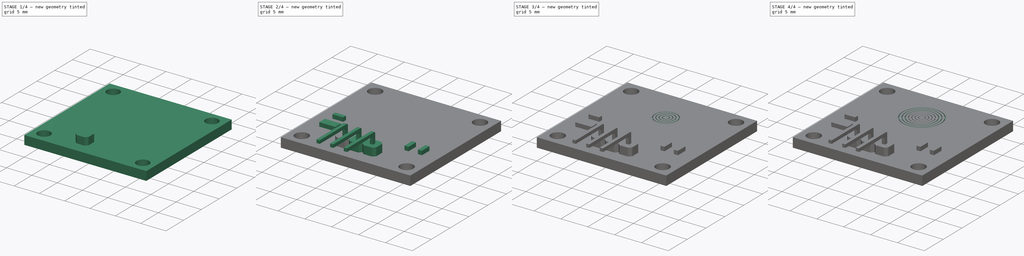
[diagram: build sequence overview — one tinted view per stage of 4, left to right]
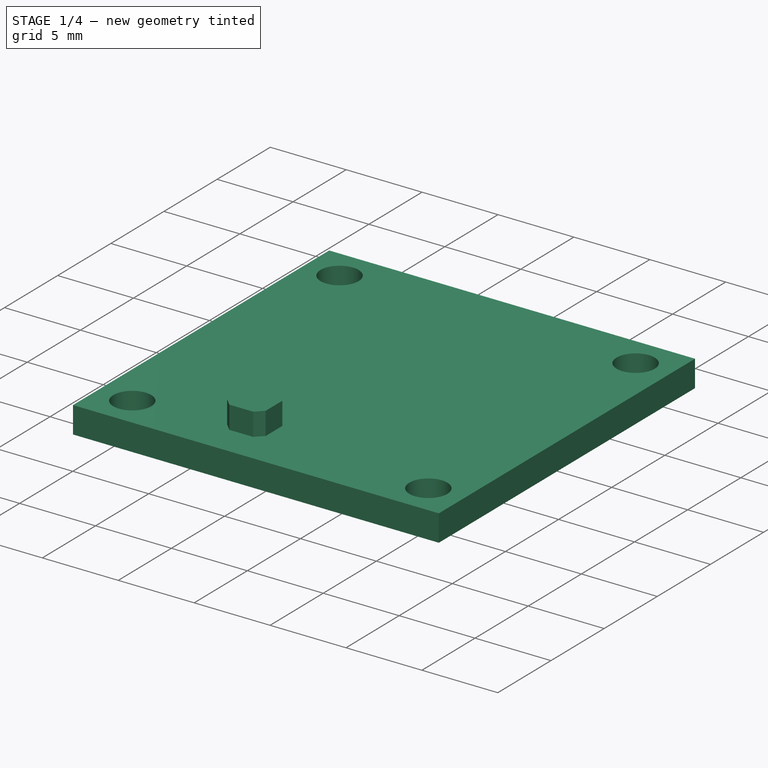
[diagram: stage 1 of 4 — iso view after this stage's code; geometry added in this stage tinted green]
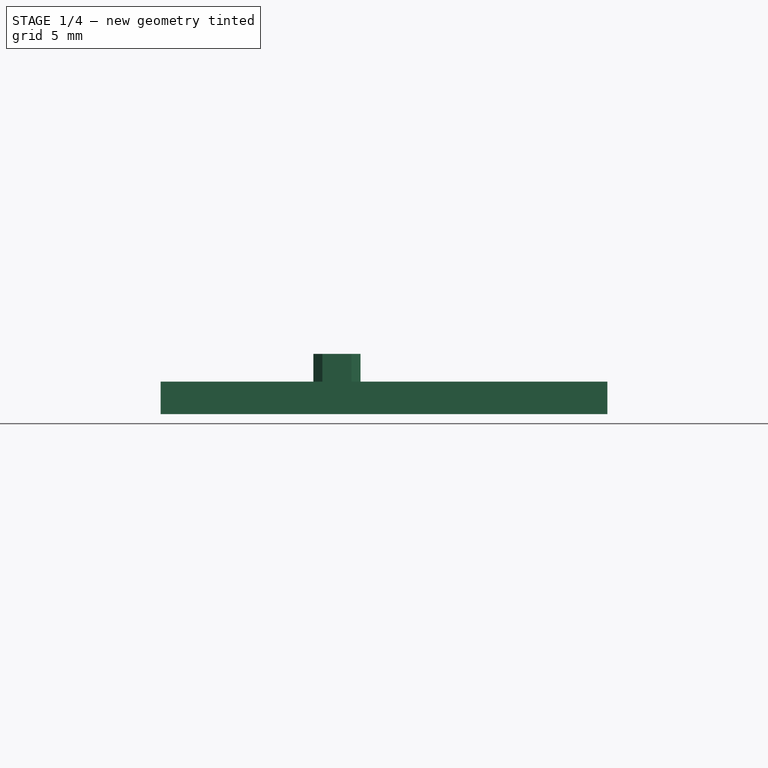
[diagram: stage 1 of 4 — front view after this stage's code; geometry added in this stage tinted green]
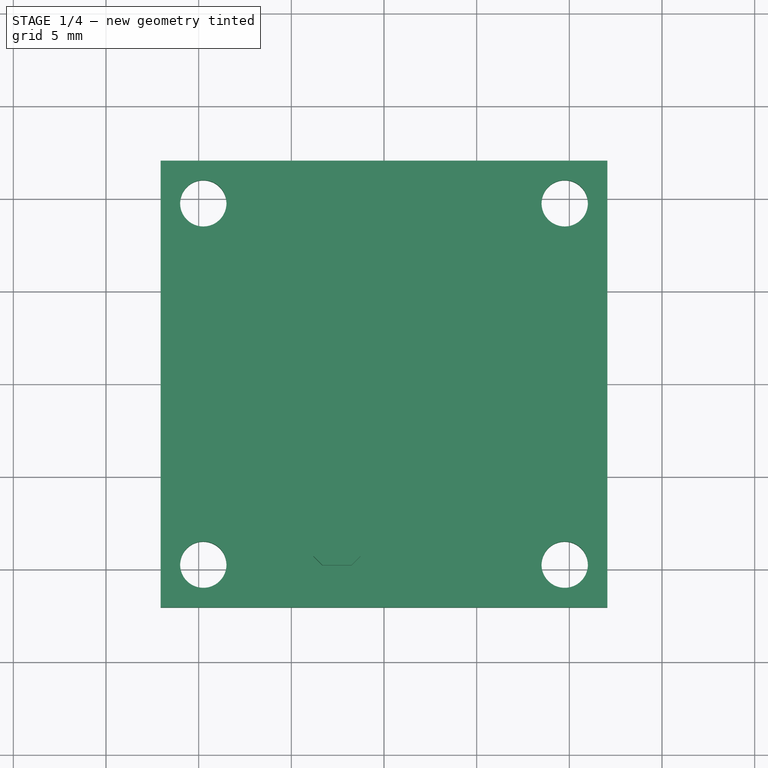
[diagram: stage 1 of 4 — top view after this stage's code; geometry added in this stage tinted green]
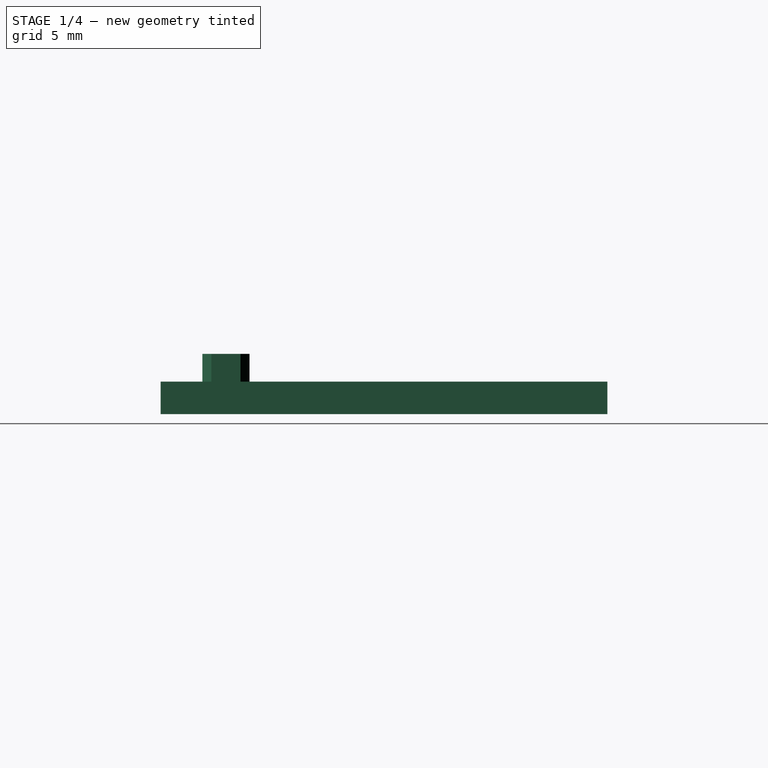
[diagram: stage 1 of 4 — right view after this stage's code; geometry added in this stage tinted green]
FCSTD DOCUMENT  (FreeCAD 1.0R39109 (Git))
Label: touch_sensor
License: All rights reserved
LicenseURL: http://en.wikipedia.org/wiki/All_rights_reserved
objects: Sketcher::SketchObject×14, PartDesign::Pocket×8, PartDesign::Pad×4, PartDesign::Plane×1, PartDesign::LinearPattern×1, PartDesign::Body×1
note: 68 computed .brp shape members not serialized (recipe doc carries the construction recipe); baked Part::Feature solids carry a one-line shape summary decoded from their .brp

FEATURE [Sketcher::SketchObject] Sketch
  ArcFitTolerance = 1e-06
  AttachmentSupport = -> [XY_Plane]
  FullyConstrained = true
  MakeInternals = false
  MapMode = 5
  sketch-geometry (5):
    g0: LineSegment StartX=-12.05 StartY=12.05 StartZ=0 EndX=-12.05 EndY=-12.05 EndZ=0
    g1: LineSegment StartX=-12.05 StartY=-12.05 StartZ=0 EndX=12.05 EndY=-12.05 EndZ=0
    g2: LineSegment StartX=12.05 StartY=-12.05 StartZ=0 EndX=12.05 EndY=12.05 EndZ=0
    g3: LineSegment StartX=12.05 StartY=12.05 StartZ=0 EndX=-12.05 EndY=12.05 EndZ=0
    g4: GeomPoint [constr] X=0 Y=0 Z=0
  constraints (12):
    c: Coincident(g0,g1)
    c: Coincident(g1,g2)
    c: Coincident(g2,g3)
    c: Coincident(g3,g0)
    c: Vertical(g0)
    c: Vertical(g2)
    c: Horizontal(g1)
    c: Horizontal(g3)
    c: Symmetric(g2,g0,g4)
    c: Coincident(g4,g-1)
    c: DistanceX(g3,g3) = 24.1
    c: Equal(g2,g3)
FEATURE [PartDesign::Pad] Pad  label="PCBPad"
  Direction = (0,0,1)
  Length = 1.75
  Length2 = 10
  Profile = -> Sketch
  ReferenceAxis = -> Sketch [N_Axis]
  Refine = true
  Suppressed = false
  Type = 0
FEATURE [Sketcher::SketchObject] Sketch001
  ArcFitTolerance = 1e-06
  AttachmentSupport = -> [Pad]
  FullyConstrained = true
  MakeInternals = false
  MapMode = 5
  Placement = pos=(0,0,1.75) rot=(0,0,1;0rad)
  sketch-geometry (6):
    g0: Circle CenterX=-9.75 CenterY=9.75 CenterZ=0 NormalX=0 NormalY=0 NormalZ=1 AngleXU=0 Radius=1.25
    g1: Circle CenterX=9.75 CenterY=9.75 CenterZ=0 NormalX=0 NormalY=0 NormalZ=1 AngleXU=0 Radius=1.25
    g2: Circle CenterX=-9.75 CenterY=-9.75 CenterZ=0 NormalX=0 NormalY=0 NormalZ=1 AngleXU=0 Radius=1.25
    g3: Circle CenterX=9.75 CenterY=-9.75 CenterZ=0 NormalX=0 NormalY=0 NormalZ=1 AngleXU=0 Radius=1.25
    g4: GeomPoint X=8.5 Y=9.75 Z=0
    g5: GeomPoint X=-8.5 Y=9.75 Z=0
  constraints (13):
    c: Symmetric(g2,g0,g-1)
    c: Symmetric(g1,g3,g-1)
    c: Symmetric(g3,g2,g-2)
    c: Equal(g3,g2)
    c: Equal(g2,g0)
    c: Equal(g0,g1)
    c: Radius(g0) = 1.25
    c: PointOnObject(g4,g1)
    c: PointOnObject(g5,g0)
    c: Horizontal(g5,g4)
    c: Horizontal(g1,g4)
    c: DistanceX(g5,g4) = 17
    c: DistanceY(g3,g1) = 19.5
FEATURE [PartDesign::Pocket] Pocket  label="ScrewPocket"
  BaseFeature = -> Pad
  Direction = (0,0,-1)
  Length = 4
  Length2 = 5
  Profile = -> Sketch001
  ReferenceAxis = -> Sketch001 [N_Axis]
  Refine = true
  Suppressed = false
  Type = 1
FEATURE [Sketcher::SketchObject] Sketch002
  ArcFitTolerance = 1e-06
  AttachmentSupport = -> [Pocket]
  ExternalGeometry = -> [Pocket]
  FullyConstrained = true
  MakeInternals = false
  MapMode = 5
  Placement = pos=(0,0,1.75) rot=(0,0,1;0rad)
  sketch-geometry (18):
    g0: LineSegment [constr] StartX=-3.81 StartY=-7.26 StartZ=0 EndX=-3.81 EndY=-9.8 EndZ=0
    g1: LineSegment [constr] StartX=-3.81 StartY=-9.8 StartZ=0 EndX=-1.27 EndY=-9.8 EndZ=0
    g2: LineSegment [constr] StartX=-1.27 StartY=-9.8 StartZ=0 EndX=-1.27 EndY=-7.26 EndZ=0
    g3: LineSegment [constr] StartX=-1.27 StartY=-7.26 StartZ=0 EndX=-3.81 EndY=-7.26 EndZ=0
    g4: GeomPoint [constr] X=-2.54 Y=-8.53 Z=0
    g5: LineSegment [constr] StartX=-1.27 StartY=-7.26 StartZ=0 EndX=-1.27 EndY=-9.8 EndZ=0
    g6: LineSegment [constr] StartX=-1.27 StartY=-9.8 StartZ=0 EndX=1.27 EndY=-9.8 EndZ=0
    g7: LineSegment [constr] StartX=1.27 StartY=-9.8 StartZ=0 EndX=1.27 EndY=-7.26 EndZ=0
    g8: LineSegment [constr] StartX=1.27 StartY=-7.26 StartZ=0 EndX=-1.27 EndY=-7.26 EndZ=0
    g9: GeomPoint [constr] X=0 Y=-8.53 Z=0
    g10: LineSegment StartX=-3.81 StartY=-7.74412 StartZ=0 EndX=-3.81 EndY=-9.31588 EndZ=0
    g11: LineSegment StartX=-3.81 StartY=-9.31588 StartZ=0 EndX=-3.32588 EndY=-9.8 EndZ=0
    g12: LineSegment StartX=-3.32588 StartY=-9.8 StartZ=0 EndX=-1.75412 EndY=-9.8 EndZ=0
    g13: LineSegment StartX=-1.75412 StartY=-9.8 StartZ=0 EndX=-1.27 EndY=-9.31588 EndZ=0
    g14: LineSegment StartX=-1.27 StartY=-9.31588 StartZ=0 EndX=-1.27 EndY=-7.74412 EndZ=0
    g15: LineSegment StartX=-1.27 StartY=-7.74412 StartZ=0 EndX=-1.75412 EndY=-7.26 EndZ=0
    g16: LineSegment StartX=-1.75412 StartY=-7.26 StartZ=0 EndX=-3.32588 EndY=-7.26 EndZ=0
    g17: LineSegment StartX=-3.32588 StartY=-7.26 StartZ=0 EndX=-3.81 EndY=-7.74412 EndZ=0
  constraints (48):
    c: Coincident(g0,g1)
    c: Coincident(g1,g2)
    c: Coincident(g2,g3)
    c: Coincident(g3,g0)
    c: Vertical(g0)
    c: Vertical(g2)
    c: Horizontal(g1)
    c: Horizontal(g3)
    c: Symmetric(g2,g0,g4)
    c: Coincident(g5,g6)
    c: Coincident(g6,g7)
    c: Coincident(g7,g8)
    c: Coincident(g8,g5)
    c: Vertical(g7)
    c: Horizontal(g6)
    c: Horizontal(g8)
    c: Symmetric(g7,g5,g9)
    c: PointOnObject(g9,g-2)
    c: Coincident(g5,g2)
    c: Coincident(g5,g1)
    c: Equal(g3,g8)
    c: DistanceX(g3,g3) = 2.54
    c: Equal(g2,g3)
    c: DistanceY(g-3,g6) = 2.25
    c: PointOnObject(g10,g0)
    c: PointOnObject(g10,g0)
    c: Coincident(g10,g11)
    c: PointOnObject(g11,g1)
    c: Coincident(g11,g12)
    c: PointOnObject(g12,g1)
    c: Coincident(g12,g13)
    c: PointOnObject(g13,g2)
    c: Coincident(g13,g14)
    c: PointOnObject(g14,g2)
    c: Coincident(g14,g15)
    c: PointOnObject(g15,g3)
    c: Coincident(g15,g16)
    c: PointOnObject(g16,g3)
    c: Coincident(g16,g17)
    c: Coincident(g17,g10)
    c: Equal(g17,g15)
    c: Equal(g15,g13)
    c: Equal(g13,g11)
    c: Parallel(g17,g13)
    c: Parallel(g11,g15)
    c: Angle(g13,g12) = 2.35619
    c: Equal(g14,g16)
    c: Equal(g16,g10)
FEATURE [PartDesign::Pad] Pad001  label="ConnBasePad"
  BaseFeature = -> Pocket
  Direction = (0,0,1)
  Length = 1.5
  Length2 = 10
  Profile = -> Sketch002
  ReferenceAxis = -> Sketch002 [N_Axis]
  Refine = true
  Suppressed = false
  Type = 0
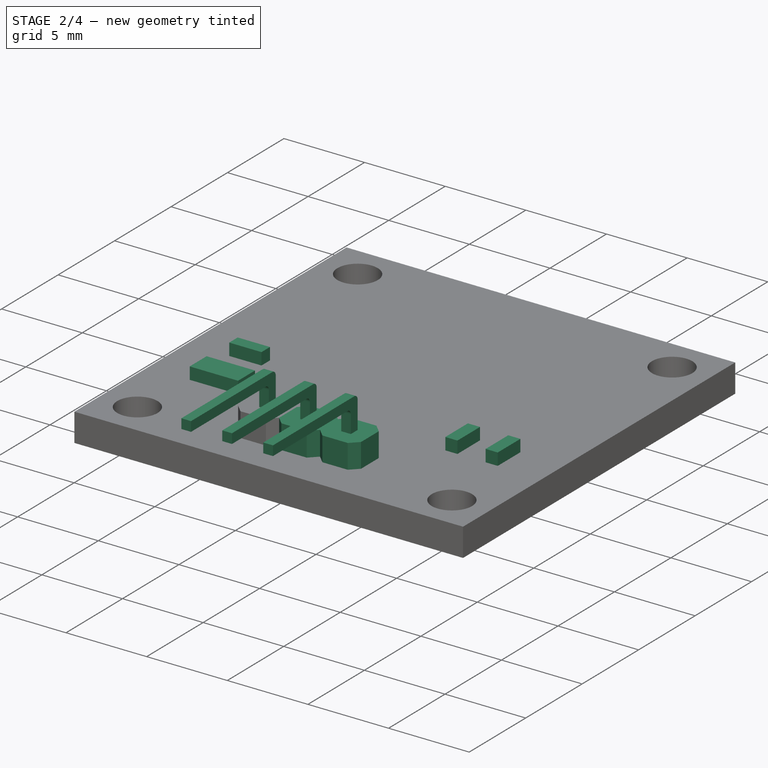
[diagram: stage 2 of 4 — iso view after this stage's code; geometry added in this stage tinted green]
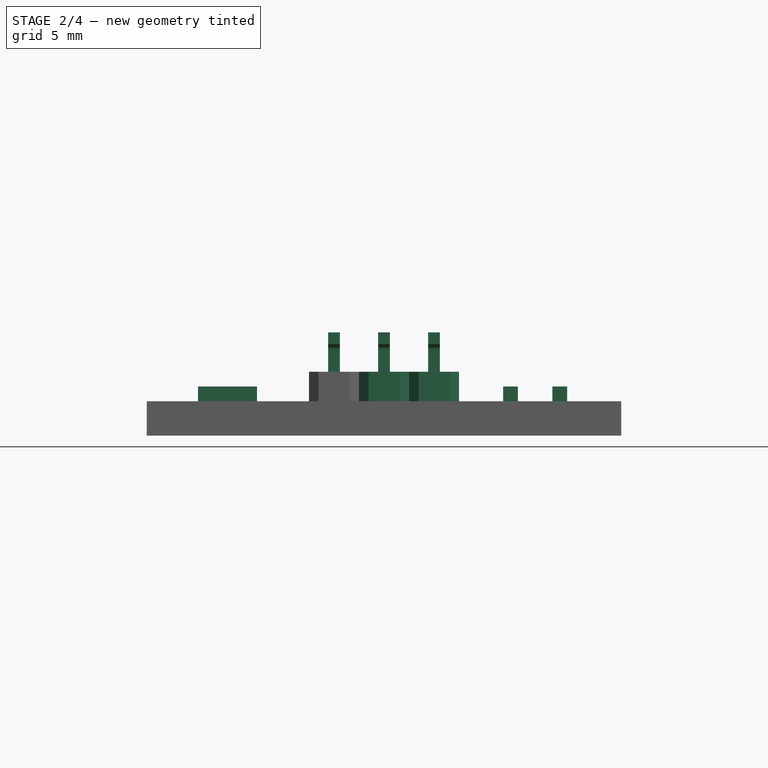
[diagram: stage 2 of 4 — front view after this stage's code; geometry added in this stage tinted green]
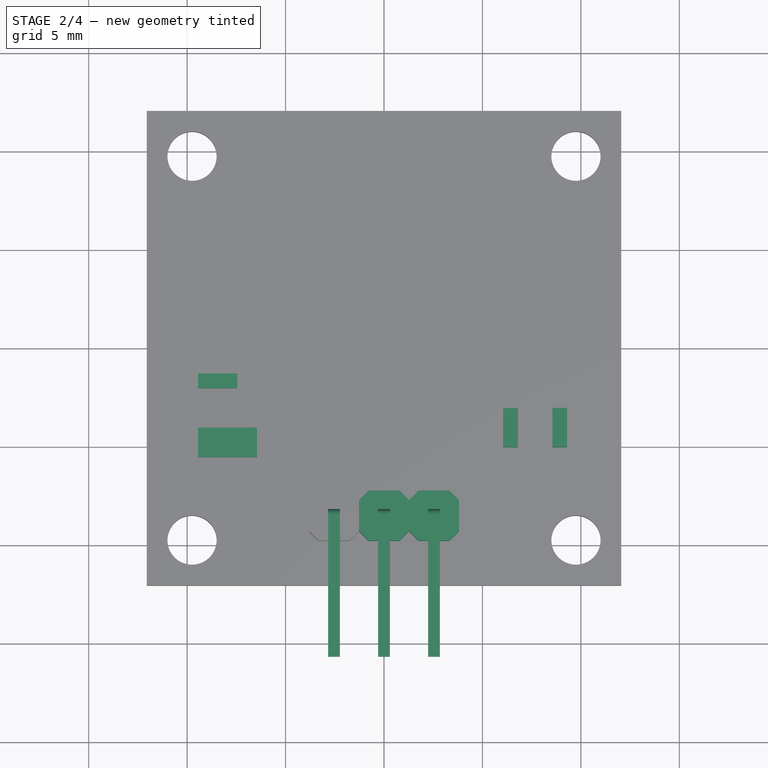
[diagram: stage 2 of 4 — top view after this stage's code; geometry added in this stage tinted green]
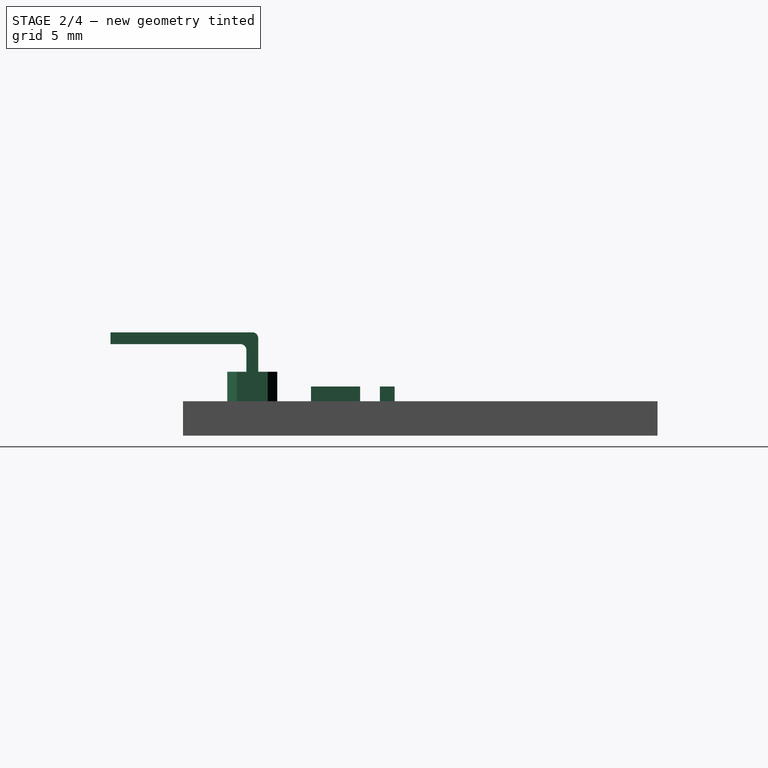
[diagram: stage 2 of 4 — right view after this stage's code; geometry added in this stage tinted green]
FEATURE [Sketcher::SketchObject] Sketch003
  ArcFitTolerance = 1e-06
  AttachmentSupport = -> [Pad001]
  ExternalGeometry = -> [Pad001]
  FullyConstrained = true
  MakeInternals = false
  MapMode = 5
  Placement = pos=(0,0,3.25) rot=(0,0,1;0rad)
  sketch-geometry (1):
    g0: GeomPoint X=-2.54 Y=-7.26 Z=0
  constraints (1):
    c: Symmetric(g-3,g-3,g0)
FEATURE [PartDesign::Plane] DatumPlane  label="ConnReference"
  AttachmentSupport = -> [YZ_Plane,Sketch003]
  Length = 60
  MapMode = 53
  Placement = pos=(-2.54,3e-16,-3e-16) rot=(0.57735,0.57735,0.57735;2.0944rad)
  ResizeMode = 0
  Width = 60
FEATURE [Sketcher::SketchObject] Sketch004
  ArcFitTolerance = 1e-06
  AttachmentSupport = -> [DatumPlane]
  ExternalGeometry = -> [Pad001]
  FullyConstrained = true
  MakeInternals = false
  MapMode = 5
  Placement = pos=(-2.54,3e-16,-3e-16) rot=(0.57735,0.57735,0.57735;2.0944rad)
  sketch-geometry (9):
    g0: GeomPoint X=-8.53 Y=3.25 Z=0
    g1: LineSegment StartX=-8.83 StartY=3.25 StartZ=0 EndX=-8.23 EndY=3.25 EndZ=0
    g2: LineSegment StartX=-8.23 StartY=3.25 StartZ=0 EndX=-8.23 EndY=4.95 EndZ=0
    g3: ArcOfCircle CenterX=-8.53 CenterY=4.95 CenterZ=0 NormalX=0 NormalY=0 NormalZ=1 AngleXU=0 Radius=0.3 StartAngle=0 EndAngle=1.5708
    g4: LineSegment StartX=-8.53 StartY=5.25 StartZ=0 EndX=-15.73 EndY=5.25 EndZ=0
    g5: LineSegment StartX=-15.73 StartY=5.25 StartZ=0 EndX=-15.73 EndY=4.65 EndZ=0
    g6: LineSegment StartX=-15.73 StartY=4.65 StartZ=0 EndX=-9.13 EndY=4.65 EndZ=0
    g7: ArcOfCircle CenterX=-9.13 CenterY=4.35 CenterZ=0 NormalX=0 NormalY=0 NormalZ=1 AngleXU=0 Radius=0.3 StartAngle=9e-16 EndAngle=1.5708
    g8: LineSegment StartX=-8.83 StartY=4.35 StartZ=0 EndX=-8.83 EndY=3.25 EndZ=0
  constraints (22):
    c: Symmetric(g-3,g-3,g0)
    c: PointOnObject(g1,g-3)
    c: Coincident(g1,g2)
    c: Vertical(g2)
    c: Tangent(g2,g3) = -1.5708
    c: Coincident(g4,g5)
    c: Vertical(g5)
    c: Coincident(g5,g6)
    c: Horizontal(g6)
    c: Tangent(g6,g7) = 1.5708
    c: Coincident(g8,g1)
    c: Tangent(g7,g8) = 1.5708
    c: Vertical(g8)
    c: Horizontal(g4)
    c: Tangent(g3,g4) = -1.5708
    c: DistanceX(g1,g1) = 0.6
    c: DistanceY(g1,g3) = 2
    c: DistanceY(g5,g5) = 0.6
    c: DistanceX(g4,g2) = 7.5
    c: Symmetric(g1,g1,g0)
    c: Equal(g7,g3)
    c: Radius(g7) = 0.3
FEATURE [PartDesign::Pad] Pad002  label="ConnPad"
  BaseFeature = -> Pad001
  Direction = (1,0,0)
  Length = 0.3
  Length2 = 0.3
  Profile = -> Sketch004
  ReferenceAxis = -> Sketch004 [N_Axis]
  Refine = true
  Suppressed = false
  Type = 4
FEATURE [PartDesign::LinearPattern] LinearPattern  label="ConnPattern"
  BaseFeature = -> Pad002
  Direction = -> X_Axis
  Length = 5.08
  Mode = 1
  Occurrences = 3
  Offset = 2.54
  Originals = -> [Pad002,Pad001]
  Refine = true
  Suppressed = false
  TransformMode = 0
FEATURE [Sketcher::SketchObject] Sketch005
  ArcFitTolerance = 1e-06
  AttachmentSupport = -> [LinearPattern]
  ExternalGeometry = -> [LinearPattern]
  FullyConstrained = true
  MakeInternals = false
  MapMode = 5
  Placement = pos=(0,0,1.75) rot=(0,0,1;0rad)
  sketch-geometry (16):
    g0: LineSegment StartX=8.55 StartY=-3.05 StartZ=0 EndX=8.55 EndY=-5.05 EndZ=0
    g1: LineSegment StartX=8.55 StartY=-5.05 StartZ=0 EndX=9.3 EndY=-5.05 EndZ=0
    g2: LineSegment StartX=9.3 StartY=-5.05 StartZ=0 EndX=9.3 EndY=-3.05 EndZ=0
    g3: LineSegment StartX=9.3 StartY=-3.05 StartZ=0 EndX=8.55 EndY=-3.05 EndZ=0
    g4: LineSegment StartX=6.05 StartY=-3.05 StartZ=0 EndX=6.05 EndY=-5.05 EndZ=0
    g5: LineSegment StartX=6.05 StartY=-5.05 StartZ=0 EndX=6.8 EndY=-5.05 EndZ=0
    g6: LineSegment StartX=6.8 StartY=-5.05 StartZ=0 EndX=6.8 EndY=-3.05 EndZ=0
    g7: LineSegment StartX=6.8 StartY=-3.05 StartZ=0 EndX=6.05 EndY=-3.05 EndZ=0
    g8: LineSegment StartX=-9.45 StartY=-4.05 StartZ=0 EndX=-9.45 EndY=-5.55 EndZ=0
    g9: LineSegment StartX=-9.45 StartY=-5.55 StartZ=0 EndX=-6.45 EndY=-5.55 EndZ=0
    g10: LineSegment StartX=-6.45 StartY=-5.55 StartZ=0 EndX=-6.45 EndY=-4.05 EndZ=0
    g11: LineSegment StartX=-6.45 StartY=-4.05 StartZ=0 EndX=-9.45 EndY=-4.05 EndZ=0
    g12: LineSegment StartX=-9.45 StartY=-1.3 StartZ=0 EndX=-9.45 EndY=-2.05 EndZ=0
    g13: LineSegment StartX=-9.45 StartY=-2.05 StartZ=0 EndX=-7.45 EndY=-2.05 EndZ=0
    g14: LineSegment StartX=-7.45 StartY=-2.05 StartZ=0 EndX=-7.45 EndY=-1.3 EndZ=0
    g15: LineSegment StartX=-7.45 StartY=-1.3 StartZ=0 EndX=-9.45 EndY=-1.3 EndZ=0
  constraints (48):
    c: Coincident(g0,g1)
    c: Coincident(g1,g2)
    c: Coincident(g2,g3)
    c: Coincident(g3,g0)
    c: Vertical(g0)
    c: Vertical(g2)
    c: Horizontal(g1)
    c: Horizontal(g3)
    c: Coincident(g4,g5)
    c: Coincident(g5,g6)
    c: Coincident(g6,g7)
    c: Coincident(g7,g4)
    c: Vertical(g4)
    c: Vertical(g6)
    c: Horizontal(g5)
    c: Horizontal(g7)
    c: Coincident(g8,g9)
    c: Coincident(g9,g10)
    c: Coincident(g10,g11)
    c: Coincident(g11,g8)
    c: Vertical(g8)
    c: Vertical(g10)
    c: Horizontal(g9)
    c: Horizontal(g11)
    c: Coincident(g12,g13)
    c: Coincident(g13,g14)
    c: Coincident(g14,g15)
    c: Coincident(g15,g12)
    c: Vertical(g12)
    c: Vertical(g14)
    c: Horizontal(g13)
    c: Horizontal(g15)
    c: DistanceY(g2,g2) = 2
    c: DistanceX(g3,g3) = 0.75
    c: Equal(g7,g3)
    c: Equal(g3,g14)
    c: Equal(g15,g4)
    c: Equal(g4,g2)
    c: Horizontal(g0,g6)
    c: DistanceY(g4,g13) = 1
    c: DistanceX(g9,g9) = 3
    c: DistanceY(g10,g10) = 1.5
    c: Vertical(g8,g12)
    c: DistanceY(g8,g12) = 2
    c: DistanceX(g5,g0) = 1.75
    c: DistanceX(g1,g-3) = 2.75
    c: DistanceY(g-3,g4) = 7
    c: DistanceX(g14,g4) = 13.5
FEATURE [PartDesign::Pad] Pad003  label="ElectronicsPad"
  BaseFeature = -> LinearPattern
  Direction = (0,0,1)
  Length = 0.75
  Length2 = 10
  Profile = -> Sketch005
  ReferenceAxis = -> Sketch005 [N_Axis]
  Refine = true
  Suppressed = false
  Type = 0
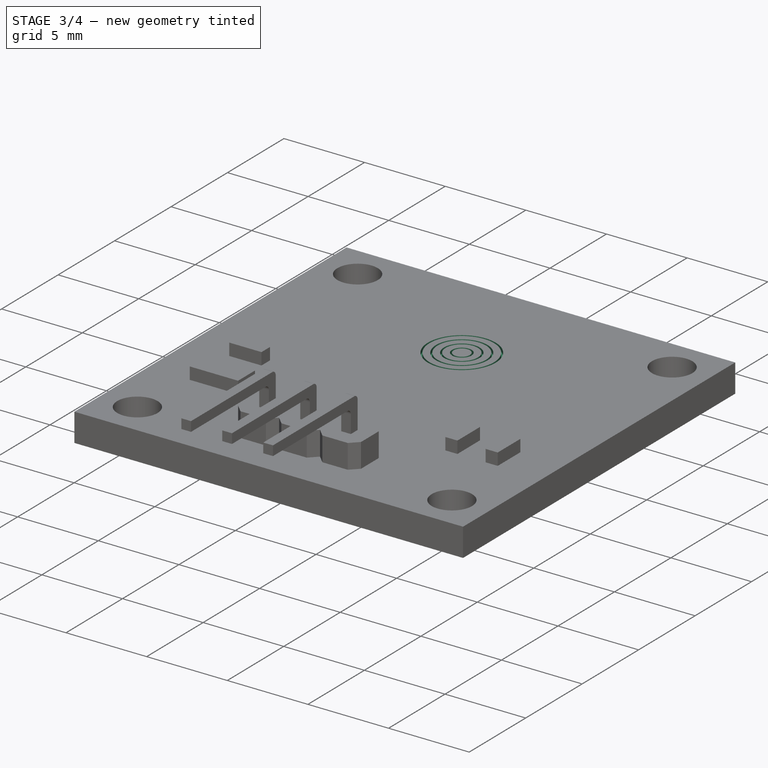
[diagram: stage 3 of 4 — iso view after this stage's code; geometry added in this stage tinted green]
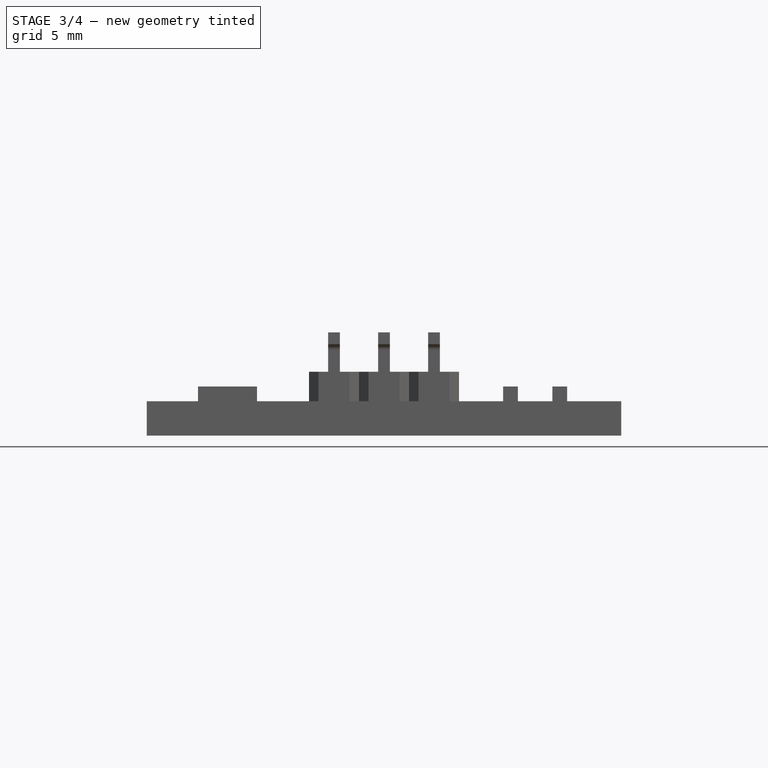
[diagram: stage 3 of 4 — front view after this stage's code; geometry added in this stage tinted green]
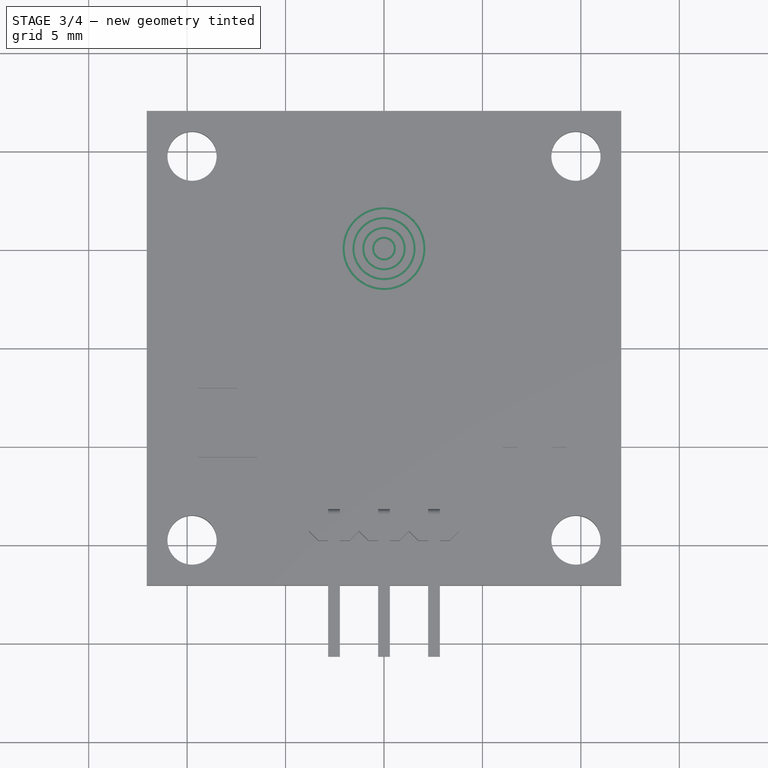
[diagram: stage 3 of 4 — top view after this stage's code; geometry added in this stage tinted green]
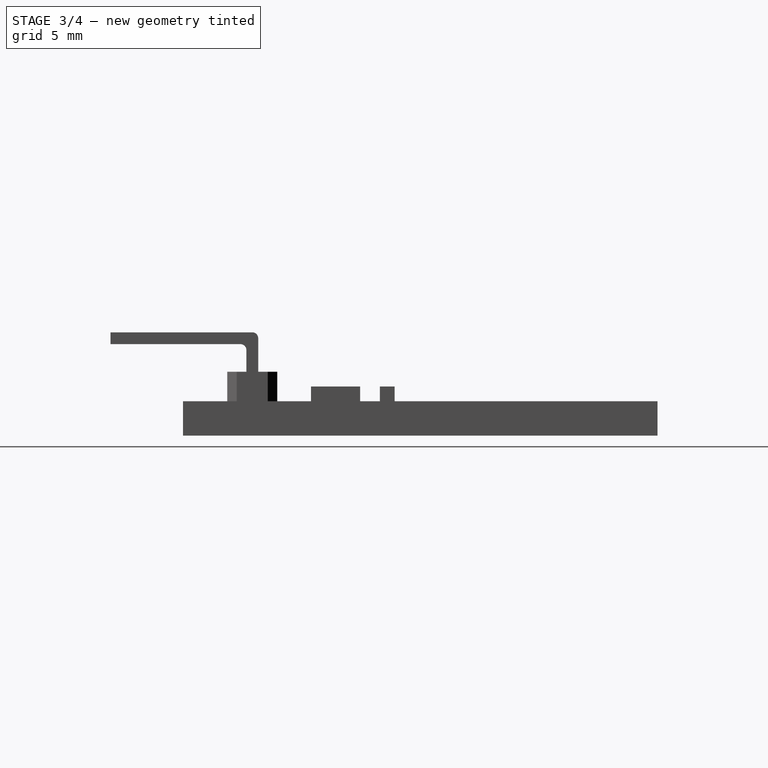
[diagram: stage 3 of 4 — right view after this stage's code; geometry added in this stage tinted green]
FEATURE [Sketcher::SketchObject] Sketch006
  ArcFitTolerance = 1e-06
  AttachmentSupport = -> [Pad003]
  ExternalGeometry = -> [Pad003]
  FullyConstrained = true
  MakeInternals = false
  MapMode = 5
  Placement = pos=(0,0,1.75) rot=(0,0,1;0rad)
  sketch-geometry (2):
    g0: Circle CenterX=0 CenterY=5.05 CenterZ=0 NormalX=0 NormalY=0 NormalZ=1 AngleXU=0 Radius=0.5
    g1: Circle CenterX=0 CenterY=5.05 CenterZ=0 NormalX=0 NormalY=0 NormalZ=1 AngleXU=0 Radius=0.6
  constraints (5):
    c: PointOnObject(g0,g-2)
    c: Coincident(g1,g0)
    c: DistanceY(g0,g-3) = 7
    c: Radius(g0) = 0.5
    c: Radius(g1) = 0.6
FEATURE [PartDesign::Pocket] Pocket001  label="Circle1Pocket"
  BaseFeature = -> Pad003
  Direction = (0,0,-1)
  Length = 0.25
  Length2 = 5
  Profile = -> Sketch006
  ReferenceAxis = -> Sketch006 [N_Axis]
  Refine = true
  Suppressed = false
  Type = 0
FEATURE [Sketcher::SketchObject] Sketch007
  ArcFitTolerance = 1e-06
  AttachmentSupport = -> [Pocket001]
  ExternalGeometry = -> [Pocket001]
  FullyConstrained = true
  MakeInternals = false
  MapMode = 5
  Placement = pos=(0,0,1.75) rot=(0,0,1;0rad)
  sketch-geometry (2):
    g0: Circle CenterX=0 CenterY=5.05 CenterZ=0 NormalX=0 NormalY=0 NormalZ=1 AngleXU=0 Radius=1
    g1: Circle CenterX=0 CenterY=5.05 CenterZ=0 NormalX=0 NormalY=0 NormalZ=1 AngleXU=0 Radius=1.1
  constraints (4):
    c: Coincident(g0,g-3)
    c: Coincident(g1,g0)
    c: Radius(g0) = 1
    c: Radius(g1) = 1.1
FEATURE [PartDesign::Pocket] Pocket002  label="Circle2Pocket"
  BaseFeature = -> Pocket001
  Direction = (0,0,-1)
  Length = 0.25
  Length2 = 5
  Profile = -> Sketch007
  ReferenceAxis = -> Sketch007 [N_Axis]
  Refine = true
  Suppressed = false
  Type = 0
FEATURE [Sketcher::SketchObject] Sketch008
  ArcFitTolerance = 1e-06
  AttachmentSupport = -> [Pocket002]
  ExternalGeometry = -> [Pocket002]
  FullyConstrained = true
  MakeInternals = false
  MapMode = 5
  Placement = pos=(0,0,1.75) rot=(0,0,1;0rad)
  sketch-geometry (2):
    g0: Circle CenterX=0 CenterY=5.05 CenterZ=0 NormalX=0 NormalY=0 NormalZ=1 AngleXU=0 Radius=1.5
    g1: Circle CenterX=0 CenterY=5.05 CenterZ=0 NormalX=0 NormalY=0 NormalZ=1 AngleXU=0 Radius=1.6
  constraints (4):
    c: Radius(g0) = 1.5
    c: Coincident(g0,g-4)
    c: Coincident(g1,g0)
    c: Radius(g1) = 1.6
FEATURE [PartDesign::Pocket] Pocket003  label="Circle3Pocket"
  BaseFeature = -> Pocket002
  Direction = (0,0,-1)
  Length = 0.25
  Length2 = 5
  Profile = -> Sketch008
  ReferenceAxis = -> Sketch008 [N_Axis]
  Refine = true
  Suppressed = false
  Type = 0
FEATURE [Sketcher::SketchObject] Sketch009
  ArcFitTolerance = 1e-06
  AttachmentSupport = -> [Pocket003]
  ExternalGeometry = -> [Pocket003]
  FullyConstrained = true
  MakeInternals = false
  MapMode = 5
  Placement = pos=(0,0,1.75) rot=(0,0,1;0rad)
  sketch-geometry (2):
    g0: Circle CenterX=0 CenterY=5.05 CenterZ=0 NormalX=0 NormalY=0 NormalZ=1 AngleXU=0 Radius=2
    g1: Circle CenterX=0 CenterY=5.05 CenterZ=0 NormalX=0 NormalY=0 NormalZ=1 AngleXU=0 Radius=2.1
  constraints (4):
    c: Coincident(g0,g-3)
    c: Coincident(g1,g0)
    c: Radius(g0) = 2
    c: Radius(g1) = 2.1
FEATURE [PartDesign::Pocket] Pocket004  label="Circle4Pocket"
  BaseFeature = -> Pocket003
  Direction = (0,0,-1)
  Length = 0.25
  Length2 = 5
  Profile = -> Sketch009
  ReferenceAxis = -> Sketch009 [N_Axis]
  Refine = true
  Suppressed = false
  Type = 0
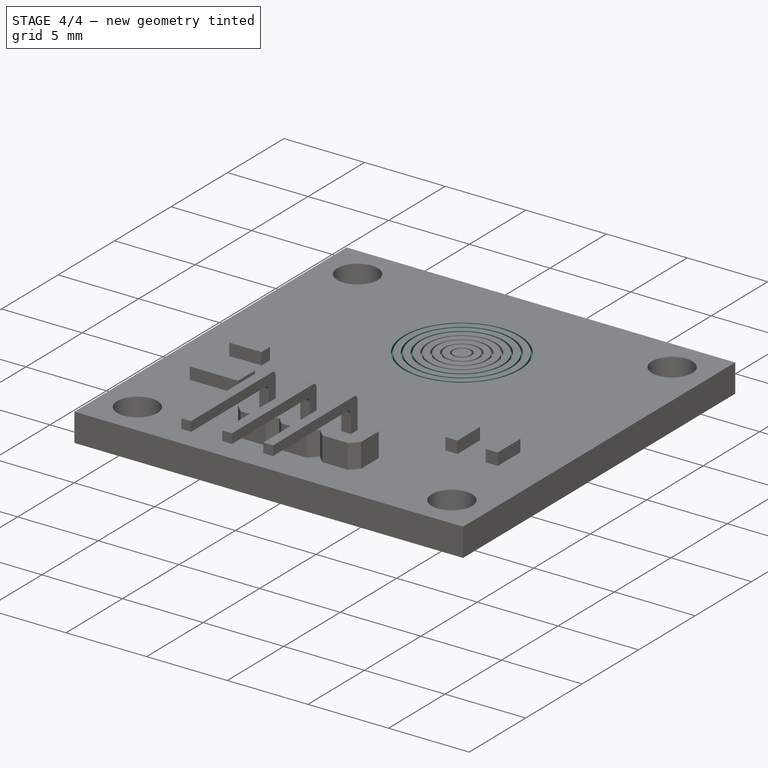
[diagram: stage 4 of 4 — iso view after this stage's code; geometry added in this stage tinted green]
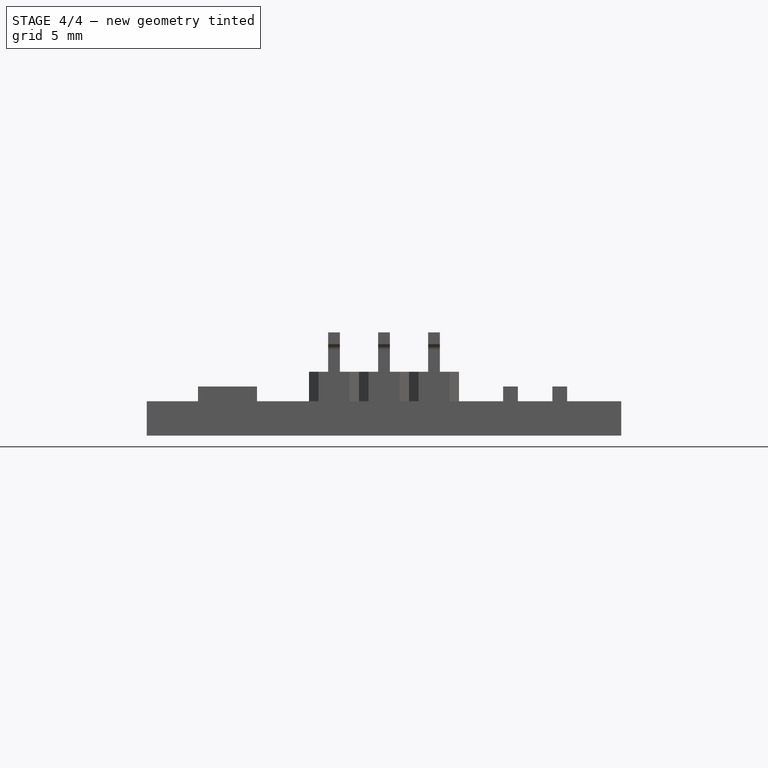
[diagram: stage 4 of 4 — front view after this stage's code; geometry added in this stage tinted green]
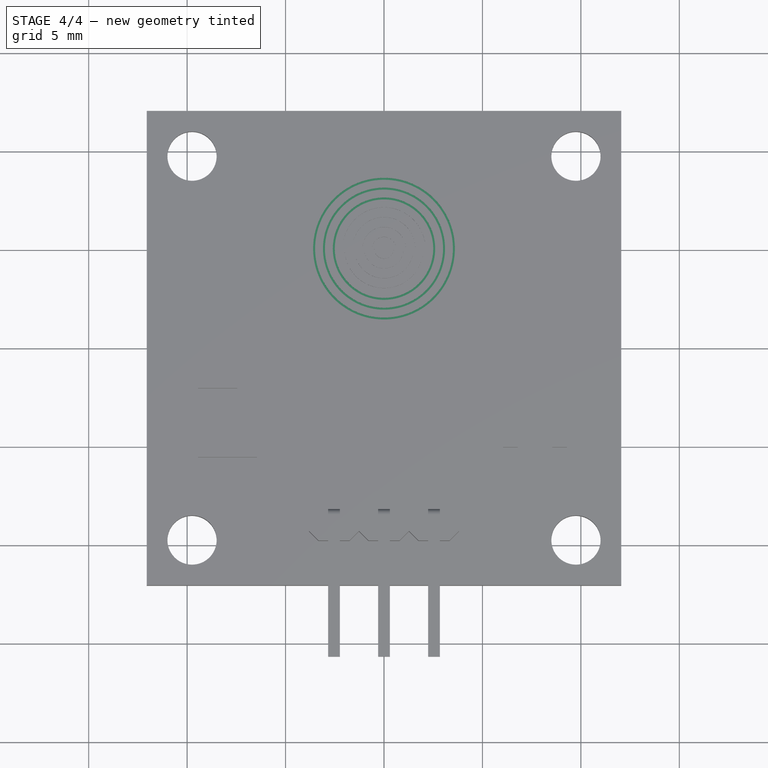
[diagram: stage 4 of 4 — top view after this stage's code; geometry added in this stage tinted green]
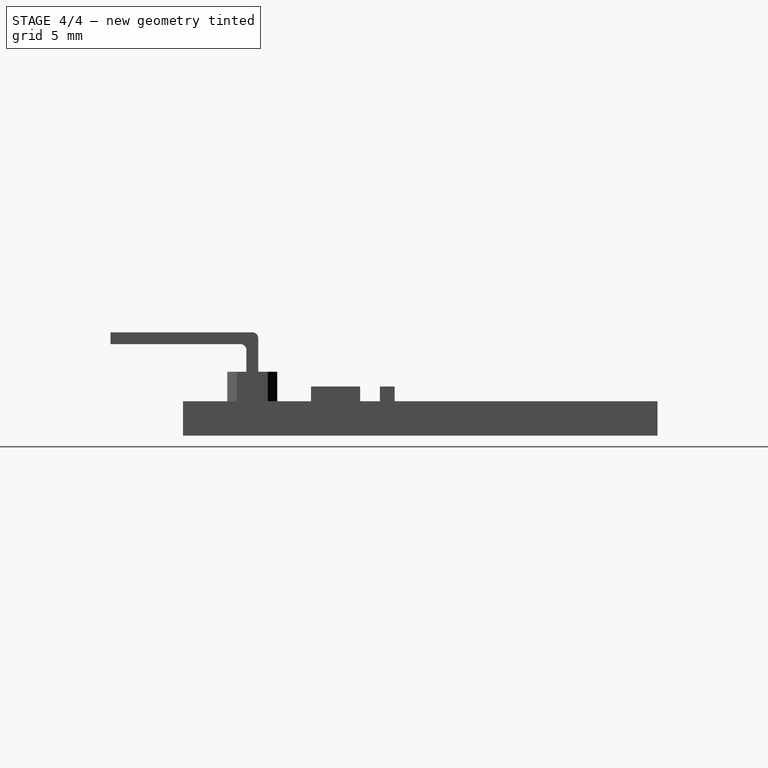
[diagram: stage 4 of 4 — right view after this stage's code; geometry added in this stage tinted green]
FEATURE [Sketcher::SketchObject] Sketch010
  ArcFitTolerance = 1e-06
  AttachmentSupport = -> [Pocket004]
  ExternalGeometry = -> [Pocket004]
  FullyConstrained = true
  MakeInternals = false
  MapMode = 5
  Placement = pos=(0,0,1.75) rot=(0,0,1;0rad)
  sketch-geometry (2):
    g0: Circle CenterX=0 CenterY=5.05 CenterZ=0 NormalX=0 NormalY=0 NormalZ=1 AngleXU=0 Radius=2.5
    g1: Circle CenterX=0 CenterY=5.05 CenterZ=0 NormalX=0 NormalY=0 NormalZ=1 AngleXU=0 Radius=2.6
  constraints (4):
    c: Coincident(g1,g0)
    c: Coincident(g0,g-3)
    c: Radius(g0) = 2.5
    c: Radius(g1) = 2.6
FEATURE [PartDesign::Pocket] Pocket005  label="Circle5Pocket"
  BaseFeature = -> Pocket004
  Direction = (0,0,-1)
  Length = 0.25
  Length2 = 5
  Profile = -> Sketch010
  ReferenceAxis = -> Sketch010 [N_Axis]
  Refine = true
  Suppressed = false
  Type = 0
FEATURE [Sketcher::SketchObject] Sketch011
  ArcFitTolerance = 1e-06
  AttachmentSupport = -> [Pocket005]
  ExternalGeometry = -> [Pocket005]
  FullyConstrained = true
  MakeInternals = false
  MapMode = 5
  Placement = pos=(0,0,1.75) rot=(0,0,1;0rad)
  sketch-geometry (2):
    g0: Circle CenterX=0 CenterY=5.05 CenterZ=0 NormalX=0 NormalY=0 NormalZ=1 AngleXU=0 Radius=3
    g1: Circle CenterX=0 CenterY=5.05 CenterZ=0 NormalX=0 NormalY=0 NormalZ=1 AngleXU=0 Radius=3.1
  constraints (4):
    c: Coincident(g1,g0)
    c: Coincident(g-3,g0)
    c: Radius(g0) = 3
    c: Radius(g1) = 3.1
FEATURE [PartDesign::Pocket] Pocket006  label="Circle6Pocket"
  BaseFeature = -> Pocket005
  Direction = (0,0,-1)
  Length = 0.25
  Length2 = 5
  Profile = -> Sketch011
  ReferenceAxis = -> Sketch011 [N_Axis]
  Refine = true
  Suppressed = false
  Type = 0
FEATURE [Sketcher::SketchObject] Sketch012
  ArcFitTolerance = 1e-06
  AttachmentSupport = -> [Pocket006]
  ExternalGeometry = -> [Pocket006]
  FullyConstrained = true
  MakeInternals = false
  MapMode = 5
  Placement = pos=(0,0,1.75) rot=(0,0,1;0rad)
  sketch-geometry (2):
    g0: Circle CenterX=0 CenterY=5.05 CenterZ=0 NormalX=0 NormalY=0 NormalZ=1 AngleXU=0 Radius=3.5
    g1: Circle CenterX=0 CenterY=5.05 CenterZ=0 NormalX=0 NormalY=0 NormalZ=1 AngleXU=0 Radius=3.6
  constraints (4):
    c: Coincident(g0,g-3)
    c: Coincident(g1,g0)
    c: Radius(g0) = 3.5
    c: Radius(g1) = 3.6
FEATURE [PartDesign::Pocket] Pocket007  label="Circle7Pocket"
  BaseFeature = -> Pocket006
  Direction = (0,0,-1)
  Length = 0.25
  Length2 = 5
  Profile = -> Sketch012
  ReferenceAxis = -> Sketch012 [N_Axis]
  Refine = true
  Suppressed = false
  Type = 0
FEATURE [Sketcher::SketchObject] Sketch013  label="AdditionalReference"
  ArcFitTolerance = 1e-06
  AttachmentSupport = -> [Pocket007]
  ExternalGeometry = -> [Pocket007]
  FullyConstrained = true
  MakeInternals = false
  MapMode = 5
  Placement = pos=(0,0,1.75) rot=(0,0,1;0rad)
  sketch-geometry (4):
    g0: LineSegment [constr] StartX=-12.05 StartY=0 StartZ=0 EndX=-12.05 EndY=-12.05 EndZ=0
    g1: LineSegment [constr] StartX=-12.05 StartY=-12.05 StartZ=0 EndX=12.05 EndY=-12.05 EndZ=0
    g2: LineSegment [constr] StartX=12.05 StartY=-12.05 StartZ=0 EndX=12.05 EndY=0 EndZ=0
    g3: LineSegment [constr] StartX=12.05 StartY=0 StartZ=0 EndX=-12.05 EndY=0 EndZ=0
  constraints (16):
    c: Coincident(g0,g1)
    c: Coincident(g1,g2)
    c: Coincident(g2,g3)
    c: Coincident(g3,g0)
    c: Vertical(g0)
    c: Vertical(g2)
    c: Horizontal(g1)
    c: Horizontal(g3)
    c: Symmetric(g-3,g-3,g0)
    c: Coincident(g1,g-4)
    c: DistanceY(g2,g2) = 12.05
    c: DistanceX(g1,g1) = 24.1
    c: DistanceX(g-5,g-6) = 19.5
    c: DistanceY(g1,g-6) = 2.3
    c: DistanceY(g-7,g-7) = 7.2
    c: DistanceY(g1,g-6) = 2.3
FEATURE [PartDesign::Body] Body  label="touch_sensor"
  AllowCompound = false
  Group = -> [Sketch,Pad,Sketch001,Pocket,Sketch002,Pad001,Sketch003,DatumPlane,Sketch004,Pad002,LinearPattern,Sketch005,Pad003,Sketch006,Pocket001,Sketch007,Pocket002,Sketch008,Pocket003,Sketch009,Pocket004,Sketch010,Pocket005,Sketch011,Pocket006,Sketch012,Pocket007,Sketch013]
  Origin = -> Origin
  Tip = -> Pocket007
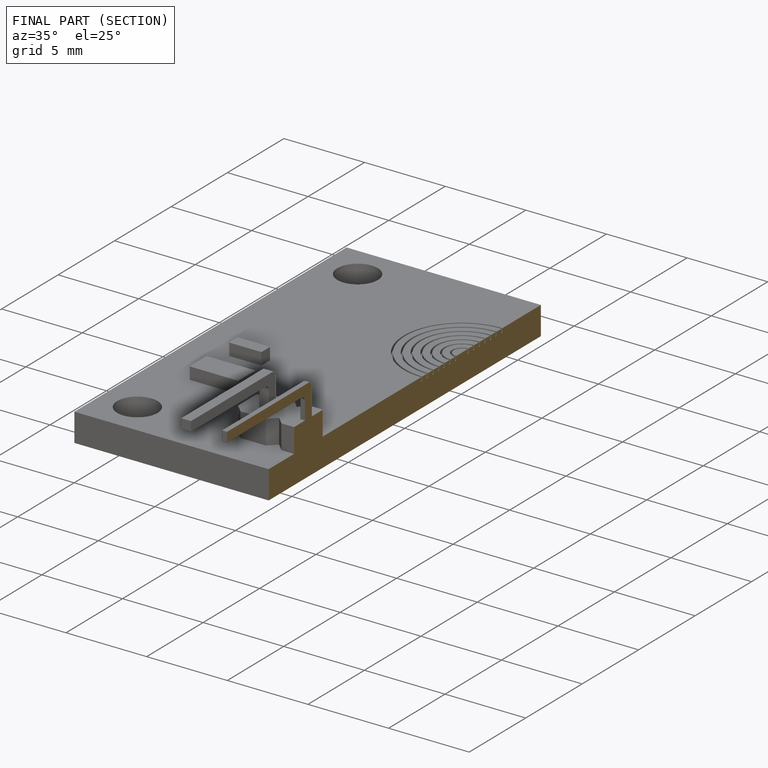
[diagram: finished part — half-section view (interior)]
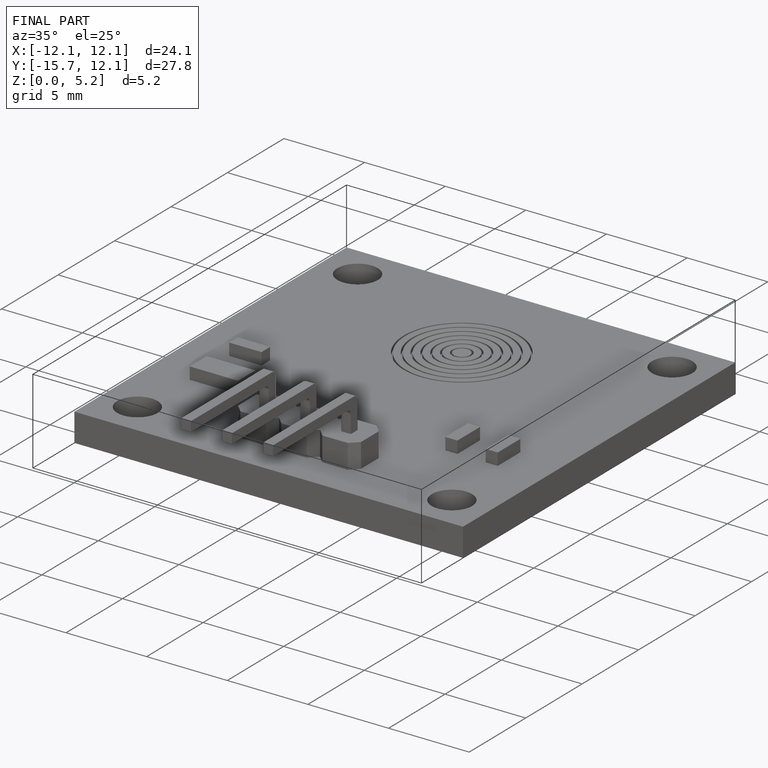
[diagram: finished part — iso view with bounding-box wireframe]
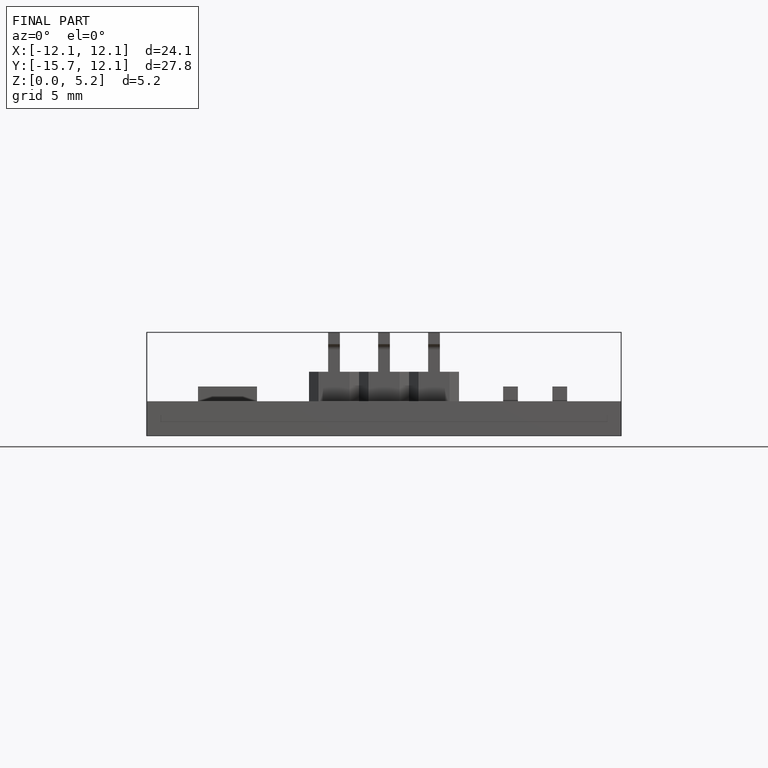
[diagram: finished part — front view with bounding-box wireframe]
